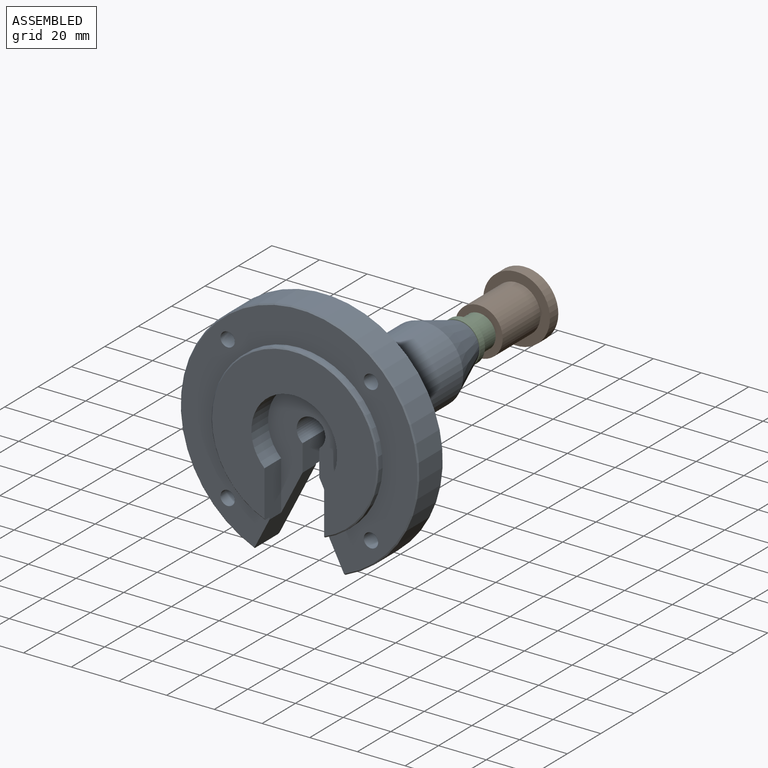
[diagram: assembled view]
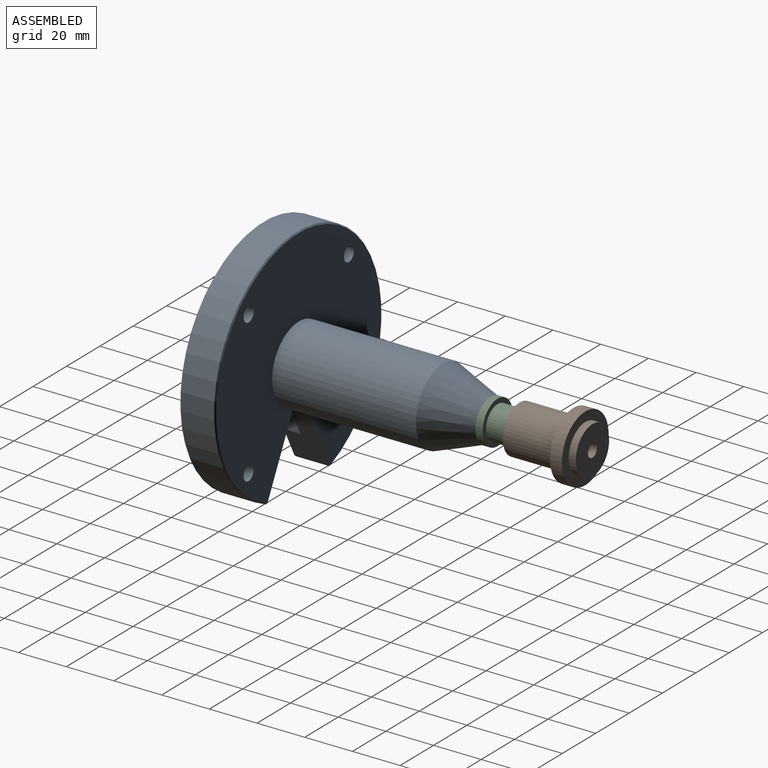
[diagram: assembled view, second angle]
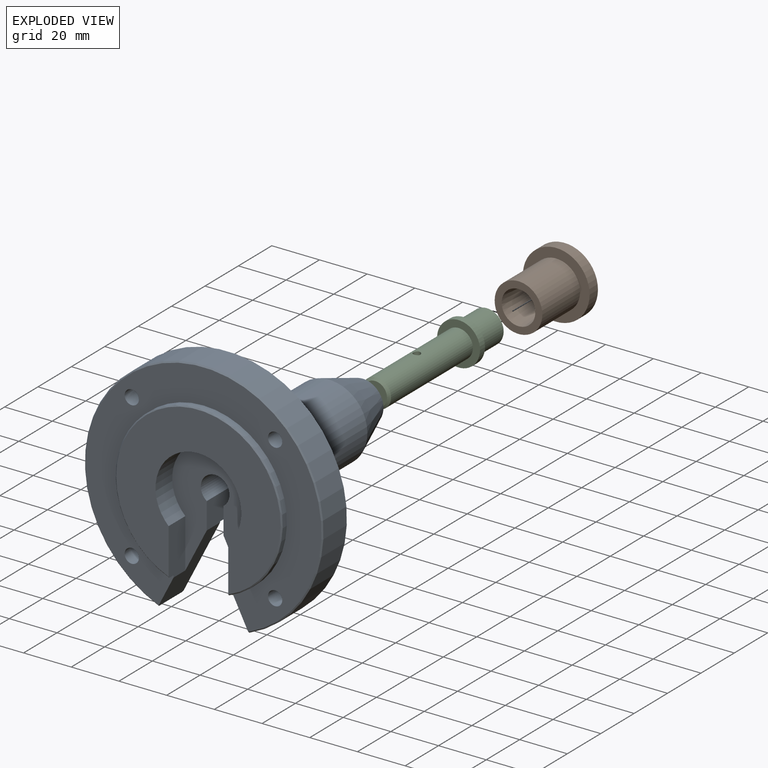
[diagram: exploded view]
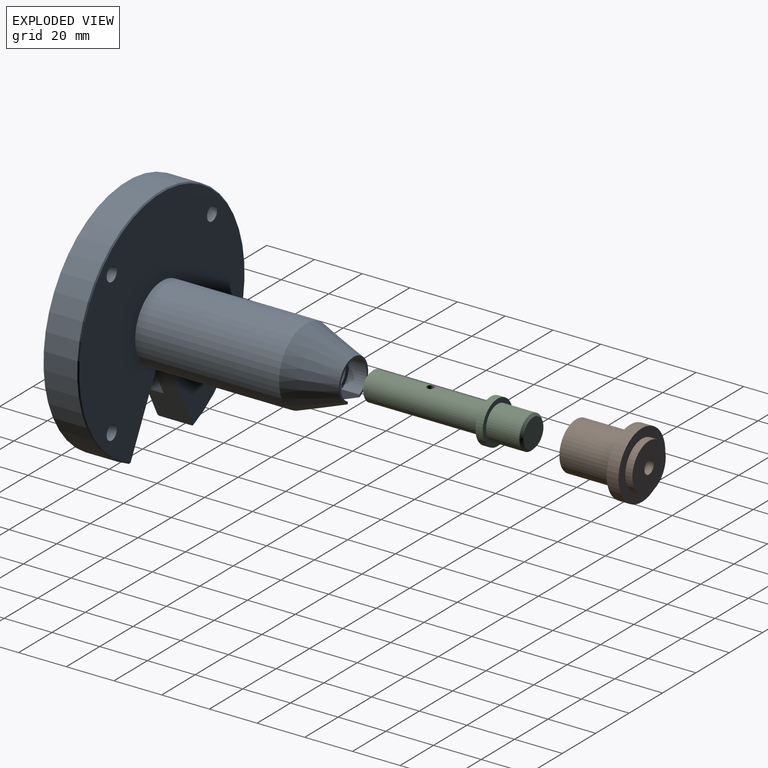
[diagram: exploded view, second angle]
ASSEMBLY  parts=3 mates=3
PART A: 26 faces, bbox 100x98.4x96.3 mm
  f0: plane 99x95.3mm, normal (0,-1,0), area 3277.1mm2, adj f2,f5,f12,f18,f20,f21,f22,f23
  f1: plane 99x95.3mm, normal (0,1,0), area 6022.5mm2, adj f5,f7,f9,f11,f13,f18,f22,f23
  f2: cylinder r=35mm len=70mm, axis (0,1,0), area 485.9mm2, adj f0,f4,f20,f21
  f3: plane 69x66.66mm, normal (0,-1,0), area 2288.8mm2, adj f4,f6,f20,f21
  f4: cone r=34.5mm half-angle=45deg, axis (0,1,0), area 136.3mm2, adj f2,f3,f20,f21
  f5: plane 30.25x15.5mm, normal (-0.89,0,-0.46), area 371.4mm2, adj f0,f1,f7,f10,f11,f12,f19,f21
  f6: cylinder r=18mm len=36mm, axis (0,-1,0), area 854.6mm2, adj f3,f19,f20,f21
  f7: plane 88.4x11.13mm, normal (-1,0,0), area 860.8mm2, adj f1,f5,f8,f13,f14,f15,f16,f17
  f8: cylinder r=6mm len=80.9mm, axis (0,1,0), area 2445.2mm2, adj f7,f9,f16,f19
  f9: plane 88.4x11.13mm, normal (1,0,0), area 860.8mm2, adj f1,f8,f13,f14,f15,f16,f17,f18
  f10: cylinder r=50mm len=100mm, axis (0,1,0), area 3852.5mm2, adj f5,f11,f12,f18
  f11: cone r=50mm half-angle=45deg, axis (0,-1,0), area 193.6mm2, adj f1,f5,f10,f18
  f12: cone r=49.5mm half-angle=45deg, axis (0,1,0), area 193.6mm2, adj f0,f5,f10,f18
  f13: cylinder r=16mm len=60.34mm, axis (0,-1,0), area 5640.5mm2, adj f1,f7,f9,f14
  f14: cone r=8.7mm half-angle=20deg, axis (0,-1,0), area 1504.5mm2, adj f7,f9,f13,f15
  f15: plane 17.4x16.67mm, normal (0,1,0), area 40.1mm2, adj f7,f9,f14,f17
  f16: plane 15.6x14.77mm, normal (0,1,0), area 64.8mm2, adj f7,f8,f9,f17
  f17: cylinder r=7.8mm len=15.6mm, axis (0,1,0), area 313.1mm2, adj f7,f9,f15,f16
  f18: plane 30.25x15.5mm, normal (0.89,0,-0.46), area 371.4mm2, adj f0,f1,f9,f10,f11,f12,f19,f20
  f19: plane 51.56x36mm, normal (0,-1,0), area 979.7mm2, adj f5,f6,f7,f8,f9,f18,f20,f21
  f20: plane 20.61x10mm, normal (1,0,0), area 203.4mm2, adj f0,f2,f3,f4,f6,f18,f19
  f21: plane 20.61x10mm, normal (-1,0,0), area 203.4mm2, adj f0,f2,f3,f4,f5,f6,f19
  f22: cylinder r=3mm len=15mm, axis (0,-1,0), area 282.7mm2, adj f0,f1
  f23: cylinder r=3mm len=15mm, axis (0,-1,0), area 282.7mm2, adj f0,f1
  f24: cylinder r=3mm len=15mm, axis (0,-1,0), area 282.7mm2, adj f0,f1
  f25: cylinder r=3mm len=15mm, axis (0,-1,0), area 282.7mm2, adj f0,f1
PART B: 13 faces, bbox 28x30.6x28 mm
  f0: cylinder r=10mm len=22.6mm, axis (0,1,0), area 1420mm2, adj f1,f4
  f1: plane 20x20mm, normal (0,1,0), area 157.6mm2, adj f0,f7
  f2: cylinder r=14mm len=28mm, axis (0,1,0), area 439.8mm2, adj f3,f4
  f3: plane 28x28mm, normal (0,-1,0), area 301.6mm2, adj f2,f5
  f4: plane 28x28mm, normal (0,1,0), area 301.6mm2, adj f0,f2
  f5: cylinder r=10mm len=20mm, axis (0,1,0), area 188.5mm2, adj f3,f6
  f6: plane 20x20mm, normal (0,-1,0), area 290.4mm2, adj f5,f10
  f7: cone r=6mm half-angle=5deg, axis (0,1,0), area 498.3mm2, adj f1,f9
  f8: plane 12x12mm, normal (0,1,0), area 42.2mm2, adj f9,f12
  f9: cylinder r=6mm len=12mm, axis (0,1,0), area 395.8mm2, adj f7,f8
  f10: cylinder r=2.75mm len=5.5mm, axis (0,-1,0), area 51.8mm2, adj f6,f11
  f11: plane 9.5x9.5mm, normal (0,1,0), area 47.1mm2, adj f10,f12
  f12: cylinder r=4.75mm len=9.5mm, axis (0,1,0), area 149.2mm2, adj f8,f11
PART C: 10 faces, bbox 18x68x18 mm
  f0: cylinder r=6mm len=49mm, axis (0,1,0), area 1833mm2, adj f4,f8,f9
  f1: plane 10x10mm, normal (0,1,0), area 78.5mm2, adj f8
  f2: cylinder r=9mm len=18mm, axis (0,1,0), area 169.6mm2, adj f3,f4
  f3: plane 18x18mm, normal (0,-1,0), area 100.5mm2, adj f2,f5
  f4: plane 18x18mm, normal (0,1,0), area 141.4mm2, adj f0,f2
  f5: cylinder r=7mm len=14mm, axis (0,1,0), area 615.8mm2, adj f3,f7
  f6: plane 12x12mm, normal (0,-1,0), area 113.1mm2, adj f7
  f7: cone r=6mm half-angle=45deg, axis (0,1,0), area 57.8mm2, adj f5,f6
  f8: cone r=6mm half-angle=45deg, axis (0,-1,0), area 48.9mm2, adj f0,f1
  f9: cylinder r=1.5mm len=12mm, axis (0,0,1), area 111.3mm2, adj f0
PLACE A t=(-101.16,-15.34,51.88)mm
PLACE B rot(axis=(1,0,0),180deg) t=(-101.16,77.2,51.88)mm
PLACE C rot(axis=(1,0,0),180deg) t=(-101.16,15.06,51.88)mm
MATE parallel C.f0 <-> A.f15  axis (0,-1,0) through (-101.16,65.06,51.88)mm
MATE slider B.f0 <-> C.f0  axis (0,-1,0) through (-101.16,89.3,51.88)mm
MATE slider C.f0 <-> A.f8  axis (0,-1,0) through (-101.16,40.56,51.88)mm
